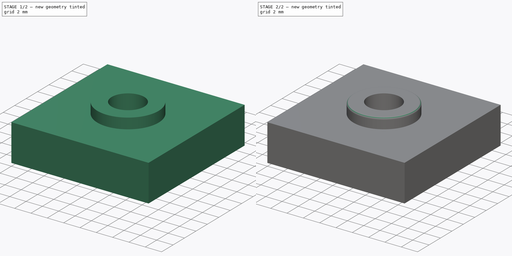
[diagram: build sequence overview — one tinted view per stage of 2, left to right]
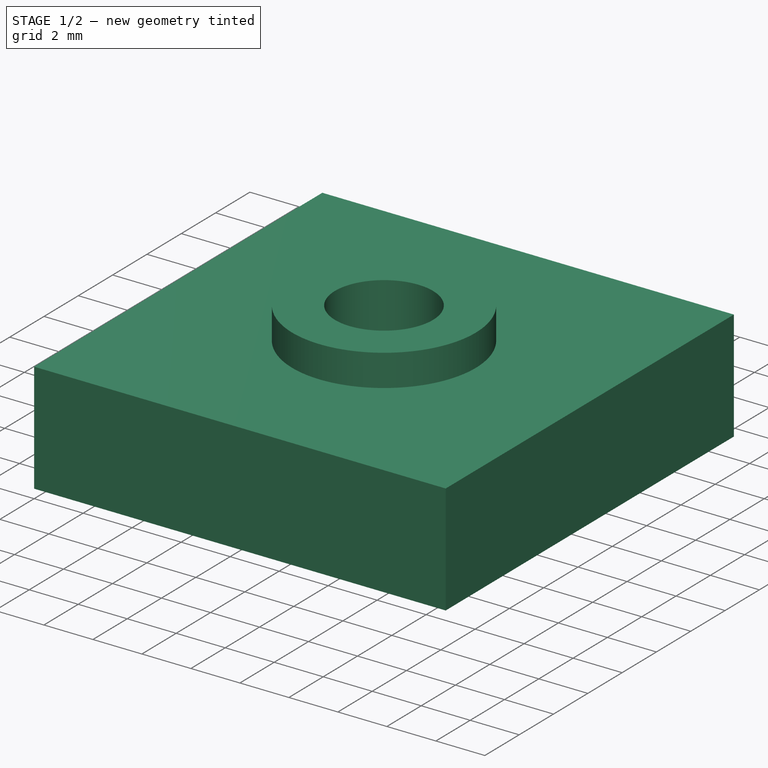
[diagram: stage 1 of 2 — iso view after this stage's code; geometry added in this stage tinted green]
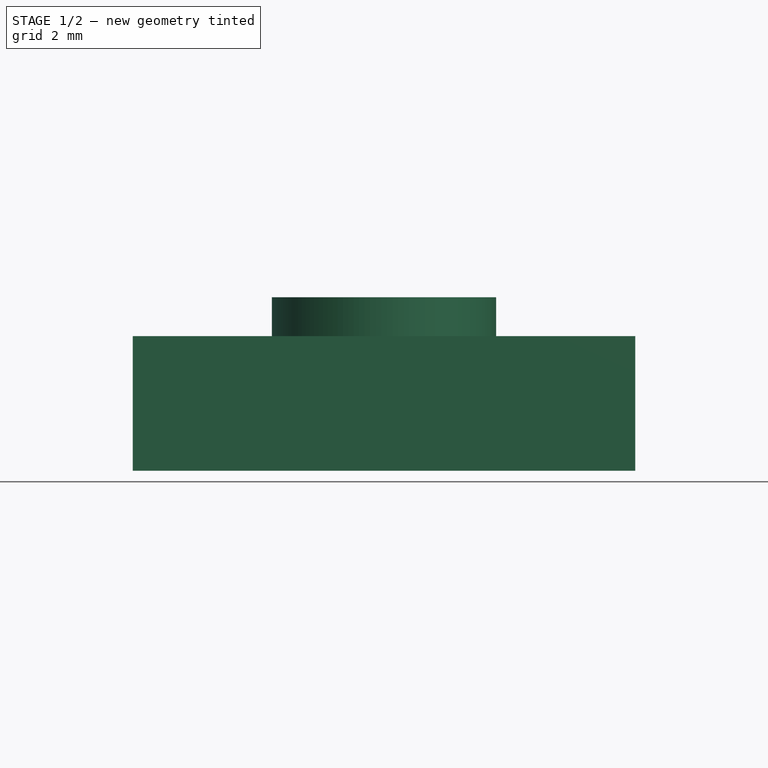
[diagram: stage 1 of 2 — front view after this stage's code; geometry added in this stage tinted green]
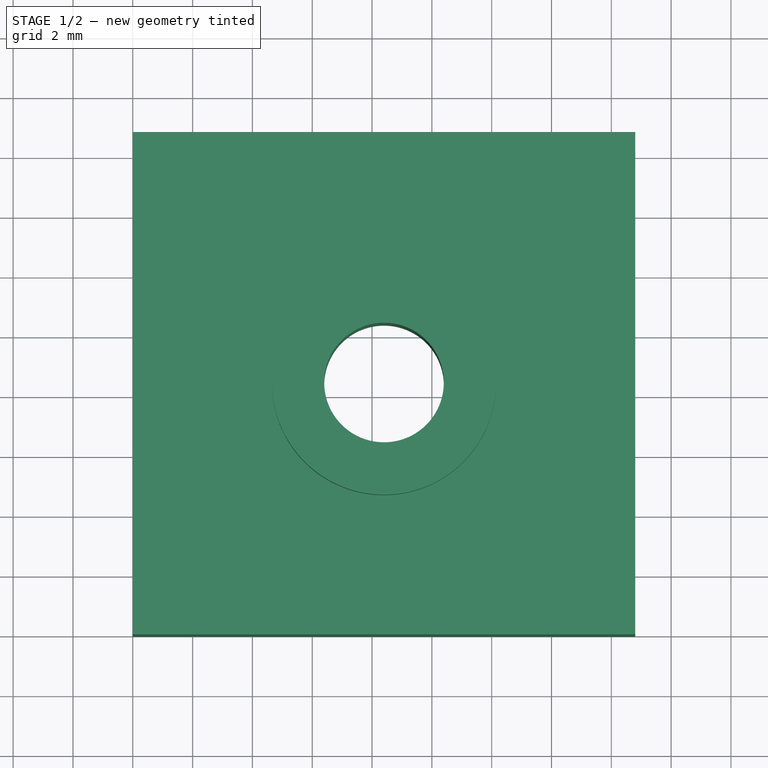
[diagram: stage 1 of 2 — top view after this stage's code; geometry added in this stage tinted green]
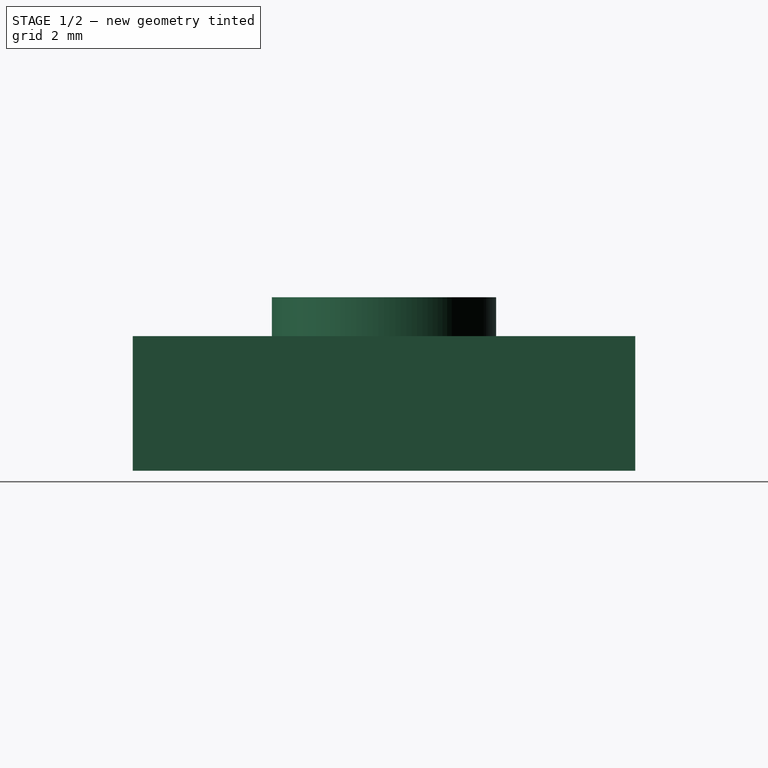
[diagram: stage 1 of 2 — right view after this stage's code; geometry added in this stage tinted green]
FCSTD DOCUMENT  (FreeCAD 0.19R)
Label: coupler_nut_keeper
License: All rights reserved
LicenseURL: http://en.wikipedia.org/wiki/All_rights_reserved
objects: Sketcher::SketchObject×3, PartDesign::Pad×2, PartDesign::Pocket×1, PartDesign::Fillet×1, PartDesign::Body×1
note: 11 computed .brp shape members not serialized (recipe doc carries the construction recipe); baked Part::Feature solids carry a one-line shape summary decoded from their .brp

FEATURE [Sketcher::SketchObject] Sketch
  MapMode = 5
  Support = -> [XY_Plane]
  expr: Constraints[11] = .Constraints.width / 2
  expr: Constraints[12] = .Constraints.width / 2
  sketch-geometry (5):
    g0: LineSegment StartX=0 StartY=0 StartZ=0 EndX=16.8 EndY=0 EndZ=0
    g1: LineSegment StartX=16.8 StartY=0 StartZ=0 EndX=16.8 EndY=16.8 EndZ=0
    g2: LineSegment StartX=16.8 StartY=16.8 StartZ=0 EndX=0 EndY=16.8 EndZ=0
    g3: LineSegment StartX=0 StartY=16.8 StartZ=0 EndX=0 EndY=0 EndZ=0
    g4: Circle CenterX=8.4 CenterY=8.4 CenterZ=0 NormalX=0 NormalY=0 NormalZ=1 AngleXU=0 Radius=2
  constraints (14):
    c: Coincident(g0,g1)
    c: Coincident(g1,g2)
    c: Coincident(g2,g3)
    c: Coincident(g3,g0)
    c: Horizontal(g0)
    c: Horizontal(g2)
    c: Vertical(g1)
    c: Vertical(g3)
    c: Coincident(g0,g-1)
    c: DistanceX(g0,g0) = 16.8  'width'
    c: Equal(g0,g3)
    c: DistanceY(g4) = 8.4
    c: DistanceX(g4) = 8.4
    c: Diameter(g4) = 4
FEATURE [PartDesign::Pad] Pad
  Length = 4.5
  Length2 = 100
  Profile = -> Sketch
  Type = 0
FEATURE [Sketcher::SketchObject] Sketch001
  MapMode = 5
  Support = -> [XY_Plane]
  expr: Constraints[17] = Sketch.Constraints.width / 2
  expr: Constraints[20] = Sketch.Constraints.width / 2
  sketch-geometry (7):
    g0: LineSegment StartX=12.45 StartY=8.4 StartZ=0 EndX=10.425 EndY=11.9074 EndZ=0
    g1: LineSegment StartX=10.425 StartY=11.9074 StartZ=0 EndX=6.375 EndY=11.9074 EndZ=0
    g2: LineSegment StartX=6.375 StartY=11.9074 StartZ=0 EndX=4.35 EndY=8.4 EndZ=0
    g3: LineSegment StartX=4.35 StartY=8.4 StartZ=0 EndX=6.375 EndY=4.8926 EndZ=0
    g4: LineSegment StartX=6.375 StartY=4.8926 StartZ=0 EndX=10.425 EndY=4.8926 EndZ=0
    g5: LineSegment StartX=10.425 StartY=4.8926 StartZ=0 EndX=12.45 EndY=8.4 EndZ=0
    g6: Circle [constr] CenterX=8.4 CenterY=8.4 CenterZ=0 NormalX=0 NormalY=0 NormalZ=1 AngleXU=0 Radius=4.05
  constraints (17):
    c: Coincident(g0,g1)
    c: Coincident(g1,g2)
    c: Coincident(g2,g3)
    c: Coincident(g3,g4)
    c: Coincident(g4,g5)
    c: Coincident(g5,g0)
    c: Equal(g0, g1-g5) x5
    c: PointOnObject(g0,g6)
    c: PointOnObject(g1,g6)
    c: PointOnObject(g2,g6)
    c: PointOnObject(g3,g6)
    c: PointOnObject(g4,g6)
    c: PointOnObject(g5,g6)
    c: DistanceX(g6) = 8.4
    c: Parallel(g4,g-1)
    c: Diameter(g6) = 8.1
    c: DistanceY(g6) = 8.4
FEATURE [Sketcher::SketchObject] Sketch002
  MapMode = 5
  Placement = pos=(0,0,4.5) rot=(0,0,1;0rad)
  Support = -> [Pad]
  expr: Constraints[0] = Sketch.Constraints.width / 2
  expr: Constraints[1] = Sketch.Constraints.width / 2
  sketch-geometry (2):
    g0: Circle CenterX=8.4 CenterY=8.4 CenterZ=0 NormalX=0 NormalY=0 NormalZ=1 AngleXU=0 Radius=3.75
    g1: Circle CenterX=8.4 CenterY=8.4 CenterZ=0 NormalX=0 NormalY=0 NormalZ=1 AngleXU=0 Radius=2
  constraints (5):
    c: DistanceY(g0) = 8.4
    c: DistanceX(g0) = 8.4
    c: Diameter(g0) = 7.5
    c: Coincident(g1,g0)
    c: Diameter(g1) = 4
FEATURE [PartDesign::Pad] Pad001
  BaseFeature = -> Pad
  Length = 1.3
  Length2 = 100
  Profile = -> Sketch002
  Type = 0
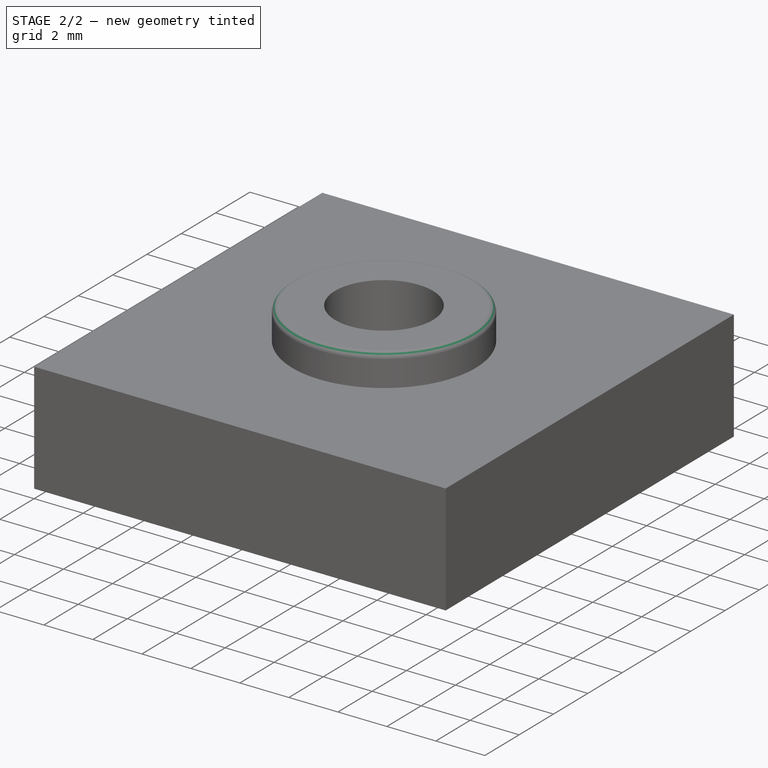
[diagram: stage 2 of 2 — iso view after this stage's code; geometry added in this stage tinted green]
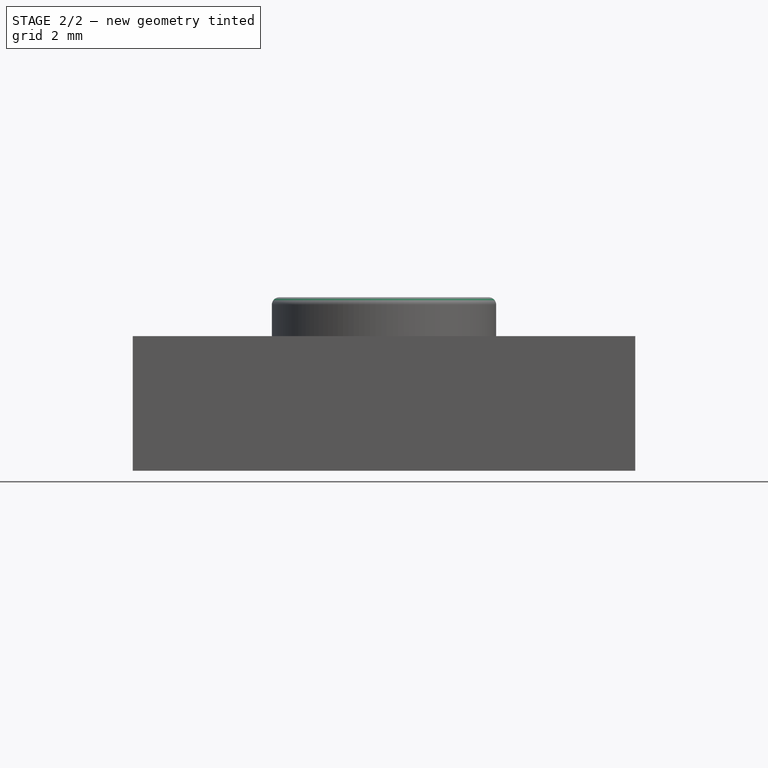
[diagram: stage 2 of 2 — front view after this stage's code; geometry added in this stage tinted green]
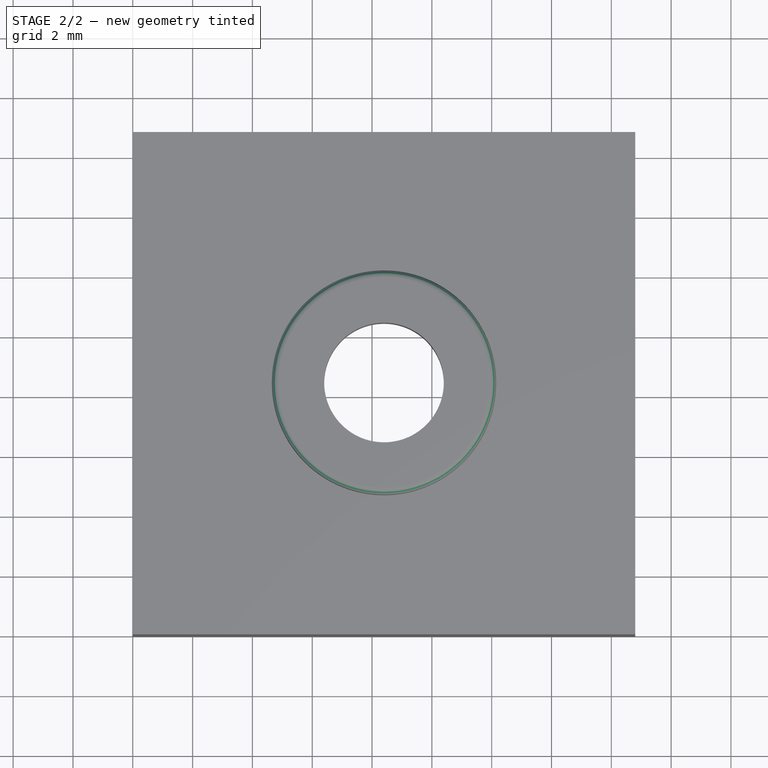
[diagram: stage 2 of 2 — top view after this stage's code; geometry added in this stage tinted green]
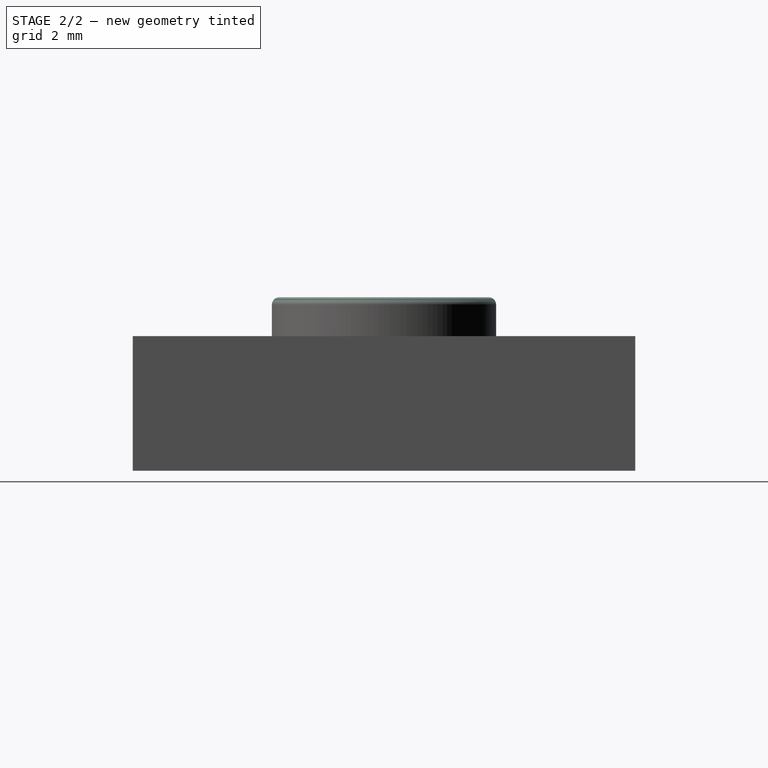
[diagram: stage 2 of 2 — right view after this stage's code; geometry added in this stage tinted green]
FEATURE [PartDesign::Pocket] Pocket
  BaseFeature = -> Pad001
  Length = 3.5
  Length2 = 100
  Profile = -> Sketch001
  Reversed = true
  Type = 0
FEATURE [PartDesign::Fillet] Fillet
  Base = -> Pocket [Edge33]
  BaseFeature = -> Pocket
  Radius = 0.25
FEATURE [PartDesign::Body] Body
  Group = -> [Sketch,Pad,Sketch001,Sketch002,Pad001,Pocket,Fillet]
  Origin = -> Origin
  Tip = -> Fillet
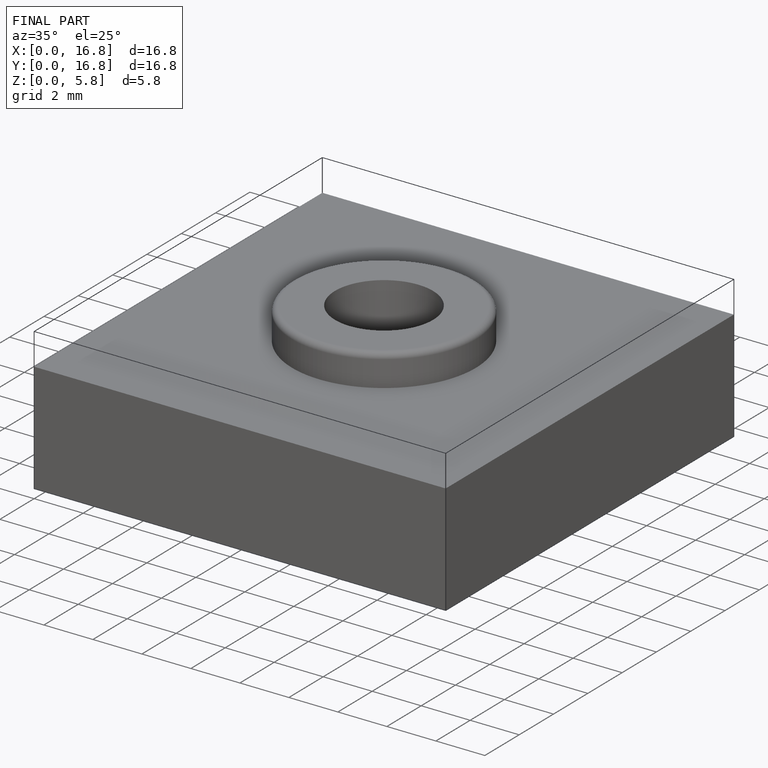
[diagram: finished part — iso view with bounding-box wireframe]
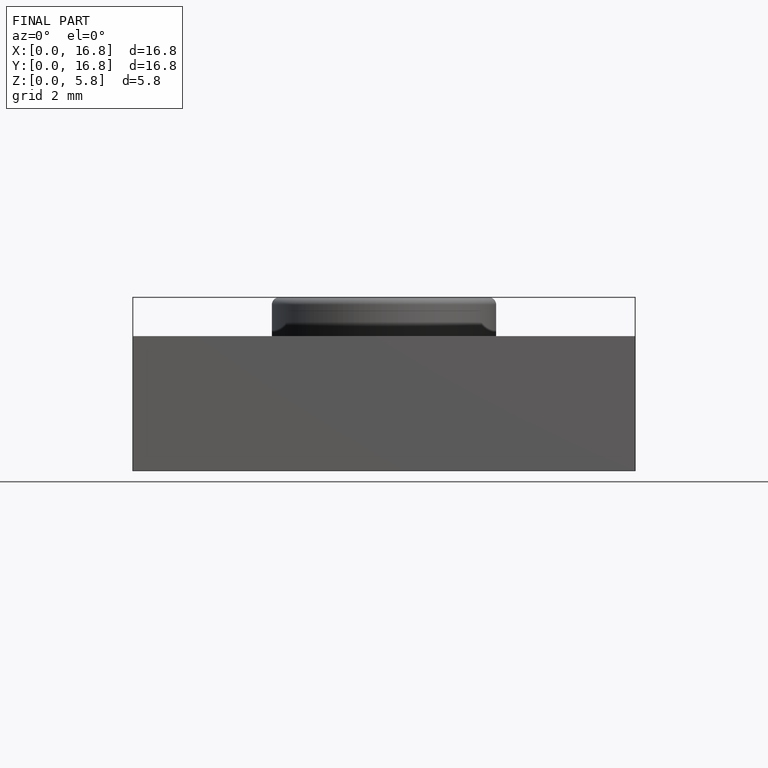
[diagram: finished part — front view with bounding-box wireframe]
